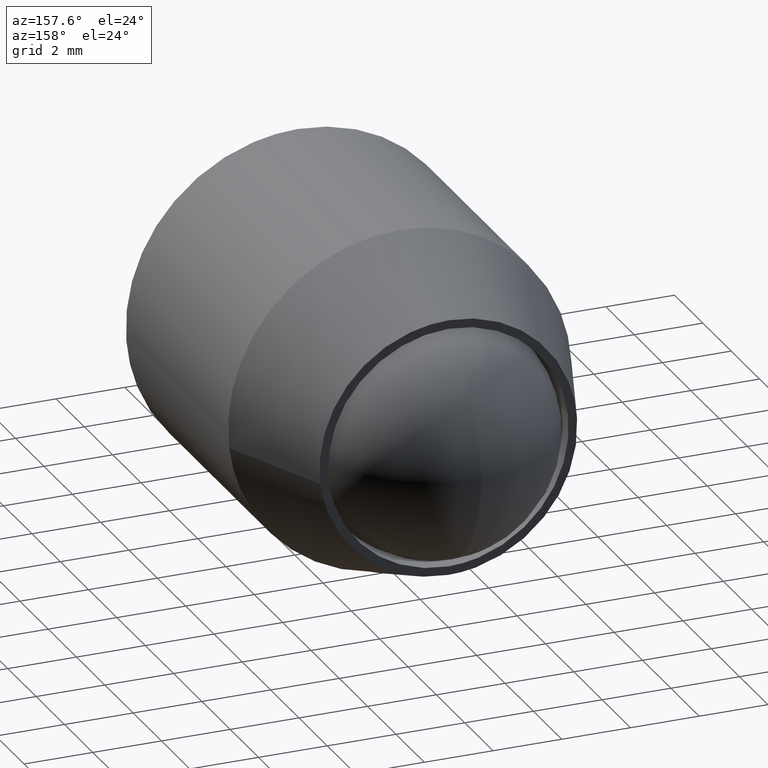
[diagram: clean part render]
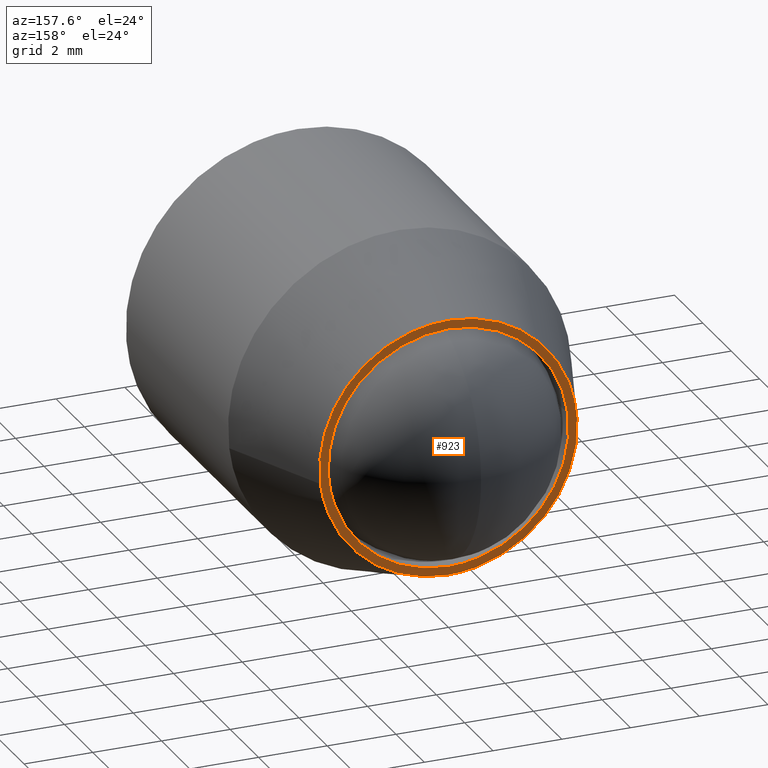
[diagram: same view with one face highlighted and labeled with its STEP entity id]
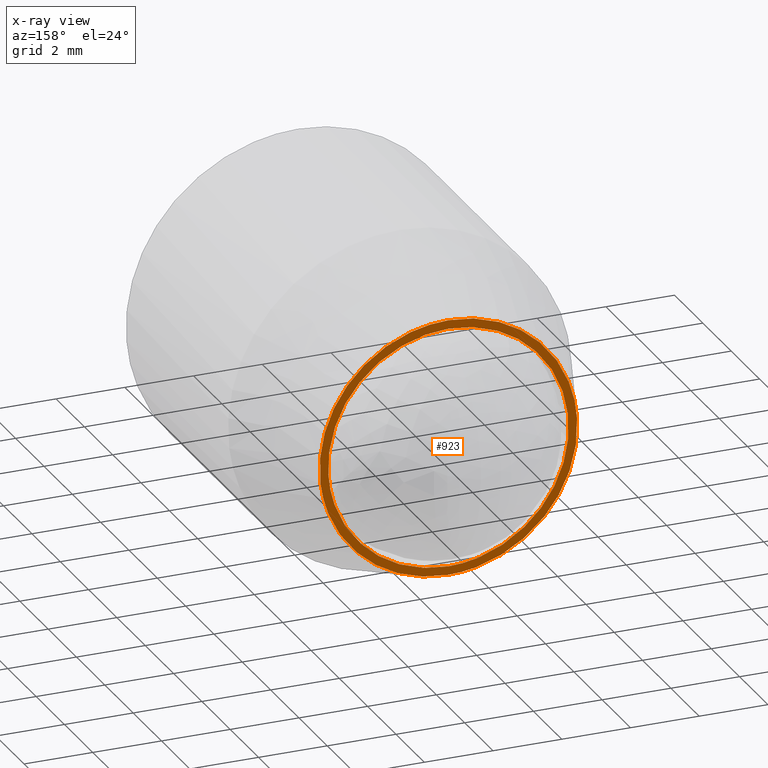
[diagram: x-ray of the same camera — body ghosted, the highlighted face saturated]
A machine part, auxiliary view. The second image highlights one B-rep face of the part: STEP entity #923.
The next image is the same camera in x-ray: the body ghosted, the highlighted face saturated — about 0% of this face is hidden behind the body in this view.
In plain terms, the highlighted face is a freeform B-spline surface patch.
Its self-contained STEP definition (entity closure, byte-faithful):
#100=CARTESIAN_POINT('',(3.493472059435628,-1.110223E-016,-0.213665556240952));
#101=VERTEX_POINT('',#100);
#107=CARTESIAN_POINT('',(0.0,0.0,-3.500000000000000));
#108=VERTEX_POINT('',#107);
#109=CARTESIAN_POINT('',(0.0,0.0,-3.500000000000000));
#110=CARTESIAN_POINT('',(3.292475324678975,0.0,-3.500000000000000));
#111=CARTESIAN_POINT('',(3.493472059435628,-1.110223E-016,-0.213665556240953));
#119=(BOUNDED_CURVE()B_SPLINE_CURVE(2,(#109,#110,#111),.UNSPECIFIED.,.F.,.U.)B_SPLINE_CURVE_WITH_KNOTS((3,3),(0.500000000000000,0.739333176211185),.UNSPECIFIED.)CURVE()GEOMETRIC_REPRESENTATION_ITEM()RATIONAL_B_SPLINE_CURVE((1.0,0.719603742602635,0.976072500250393))REPRESENTATION_ITEM(''));
#120=EDGE_CURVE('',#108,#101,#119,.T.);
#122=CARTESIAN_POINT('',(-3.475533782414077,-1.135771E-016,0.413116118403281));
#123=VERTEX_POINT('',#122);
#124=CARTESIAN_POINT('',(-3.475533782414076,-1.135771E-016,0.413116118403281));
#125=CARTESIAN_POINT('',(-3.500000000000000,0.0,0.207282547761025));
#126=CARTESIAN_POINT('',(-3.500000000000000,0.0,0.0));
#127=CARTESIAN_POINT('',(-3.500000000000000,0.0,-3.500000000000000));
#128=CARTESIAN_POINT('',(0.0,0.0,-3.500000000000000));
#136=(BOUNDED_CURVE()B_SPLINE_CURVE(2,(#124,#125,#126,#127,#128),.UNSPECIFIED.,.F.,.U.)B_SPLINE_CURVE_WITH_KNOTS((3,2,3),(0.229562653574740,0.250000000000000,0.500000000000000),.UNSPECIFIED.)CURVE()GEOMETRIC_REPRESENTATION_ITEM()RATIONAL_B_SPLINE_CURVE((0.956027107111385,0.976056159286000,1.0,0.707106781186547,1.0))REPRESENTATION_ITEM(''));
#137=EDGE_CURVE('',#123,#108,#136,.T.);
#181=CARTESIAN_POINT('',(0.0,0.0,3.500000000000000));
#182=VERTEX_POINT('',#181);
#183=CARTESIAN_POINT('',(0.0,0.0,3.500000000000000));
#184=CARTESIAN_POINT('',(-3.108614176115741,0.0,3.499999999999999));
#185=CARTESIAN_POINT('',(-3.475533782414076,-1.135771E-016,0.413116118403281));
#193=(BOUNDED_CURVE()B_SPLINE_CURVE(2,(#183,#184,#185),.UNSPECIFIED.,.F.,.U.)B_SPLINE_CURVE_WITH_KNOTS((3,3),(0.0,0.229562653574740),.UNSPECIFIED.)CURVE()GEOMETRIC_REPRESENTATION_ITEM()RATIONAL_B_SPLINE_CURVE((1.0,0.731050621900548,0.956027107111385))REPRESENTATION_ITEM(''));
#194=EDGE_CURVE('',#182,#123,#193,.T.);
#196=CARTESIAN_POINT('',(3.493472059435628,-1.110223E-016,-0.213665556240953));
#197=CARTESIAN_POINT('',(3.500000000000000,0.0,-0.106932499406306));
#198=CARTESIAN_POINT('',(3.500000000000000,0.0,0.0));
#199=CARTESIAN_POINT('',(3.500000000000000,0.0,3.500000000000000));
#200=CARTESIAN_POINT('',(0.0,0.0,3.500000000000000));
#208=(BOUNDED_CURVE()B_SPLINE_CURVE(2,(#196,#197,#198,#199,#200),.UNSPECIFIED.,.F.,.U.)B_SPLINE_CURVE_WITH_KNOTS((3,2,3),(0.739333176211185,0.750000000000000,1.0),.UNSPECIFIED.)CURVE()GEOMETRIC_REPRESENTATION_ITEM()RATIONAL_B_SPLINE_CURVE((0.976072500250393,0.987503038583913,1.0,0.707106781186547,1.0))REPRESENTATION_ITEM(''));
#209=EDGE_CURVE('',#101,#182,#208,.T.);
#484=CARTESIAN_POINT('',(3.723785501493592,0.000000950687347,-0.442627319198808));
#485=VERTEX_POINT('',#484);
#491=CARTESIAN_POINT('',(0.0,0.0,3.749999999999999));
#492=VERTEX_POINT('',#491);
#493=CARTESIAN_POINT('',(3.723785501493592,0.000000950687347,-0.442627319198808));
#494=CARTESIAN_POINT('',(3.749999665433810,0.000000925683677,-0.222089893574421));
#495=CARTESIAN_POINT('',(3.749999675608583,0.000000897531931,0.000000038558746));
#496=CARTESIAN_POINT('',(3.749999847410168,0.000000422188258,3.750000018137571));
#497=CARTESIAN_POINT('',(0.0,0.0,3.749999999999999));
#505=(BOUNDED_CURVE()B_SPLINE_CURVE(2,(#493,#494,#495,#496,#497),.UNSPECIFIED.,.F.,.U.)B_SPLINE_CURVE_WITH_KNOTS((3,2,3),(0.229562519804582,0.250000000000000,0.500000000000000),.UNSPECIFIED.)CURVE()GEOMETRIC_REPRESENTATION_ITEM()RATIONAL_B_SPLINE_CURVE((0.956026844916118,0.976056002564511,1.0,0.707106781186547,1.0))REPRESENTATION_ITEM(''));
#506=EDGE_CURVE('',#485,#492,#505,.T.);
#508=CARTESIAN_POINT('',(-3.743004912551026,0.000001996952542,0.228929625386434));
#509=VERTEX_POINT('',#508);
#510=CARTESIAN_POINT('',(0.0,0.0,3.749999999999999));
#511=CARTESIAN_POINT('',(-3.527649610390469,0.000000998476271,3.749999977814210));
#512=CARTESIAN_POINT('',(-3.743004912551026,0.000001996952542,0.228929625386434));
#520=(BOUNDED_CURVE()B_SPLINE_CURVE(2,(#510,#511,#512),.UNSPECIFIED.,.F.,.U.)B_SPLINE_CURVE_WITH_KNOTS((3,3),(0.500000000000000,0.739333070734599),.UNSPECIFIED.)CURVE()GEOMETRIC_REPRESENTATION_ITEM()RATIONAL_B_SPLINE_CURVE((1.0,0.719603866176142,0.976072274193673))REPRESENTATION_ITEM(''));
#521=EDGE_CURVE('',#492,#509,#520,.T.);
#554=CARTESIAN_POINT('',(0.0,0.0,-3.750000000000001));
#555=VERTEX_POINT('',#554);
#556=CARTESIAN_POINT('',(-3.743004912551026,0.000001996952542,0.228929625386434));
#557=CARTESIAN_POINT('',(-3.749999284949101,0.000001968255444,0.114571638587464));
#558=CARTESIAN_POINT('',(-3.749999296031640,0.000001937749549,-0.000000043056107));
#559=CARTESIAN_POINT('',(-3.749999658769798,0.000000939273278,-3.750000020870319));
#560=CARTESIAN_POINT('',(0.0,0.0,-3.750000000000001));
#568=(BOUNDED_CURVE()B_SPLINE_CURVE(2,(#556,#557,#558,#559,#560),.UNSPECIFIED.,.F.,.U.)B_SPLINE_CURVE_WITH_KNOTS((3,2,3),(0.739333070734599,0.750000000000000,1.0),.UNSPECIFIED.)CURVE()GEOMETRIC_REPRESENTATION_ITEM()RATIONAL_B_SPLINE_CURVE((0.976072274193673,0.987502915010406,1.0,0.707106781186547,1.0))REPRESENTATION_ITEM(''));
#569=EDGE_CURVE('',#509,#555,#568,.T.);
#571=CARTESIAN_POINT('',(0.0,0.0,-3.750000000000001));
#572=CARTESIAN_POINT('',(3.330655219183550,0.000000475343673,-3.749999979578827));
#573=CARTESIAN_POINT('',(3.723785501493592,0.000000950687347,-0.442627319198808));
#581=(BOUNDED_CURVE()B_SPLINE_CURVE(2,(#571,#572,#573),.UNSPECIFIED.,.F.,.U.)B_SPLINE_CURVE_WITH_KNOTS((3,3),(0.0,0.229562519804582),.UNSPECIFIED.)CURVE()GEOMETRIC_REPRESENTATION_ITEM()RATIONAL_B_SPLINE_CURVE((1.0,0.731050778622036,0.956026844916118))REPRESENTATION_ITEM(''));
#582=EDGE_CURVE('',#555,#485,#581,.T.);
#906=CARTESIAN_POINT('',(-4.124533053359756,0.0,4.124624985463544));
#907=CARTESIAN_POINT('',(-4.124533053359756,0.0,-4.124625186629222));
#908=CARTESIAN_POINT('',(4.124556187412511,0.0,4.124624985463544));
#909=CARTESIAN_POINT('',(4.124556187412511,0.0,-4.124625186629222));
#910=B_SPLINE_SURFACE_WITH_KNOTS('',1,1,((#906,#908),(#907,#909)),.UNSPECIFIED.,.F.,.F.,.U.,(2,2),(2,2),(0.0,8.249250172092765),(0.0,8.249089240772268),.UNSPECIFIED.);
#911=ORIENTED_EDGE('',*,*,#569,.F.);
#912=ORIENTED_EDGE('',*,*,#521,.F.);
#913=ORIENTED_EDGE('',*,*,#506,.F.);
#914=ORIENTED_EDGE('',*,*,#582,.F.);
#915=EDGE_LOOP('',(#911,#912,#913,#914));
#916=FACE_OUTER_BOUND('',#915,.T.);
#917=ORIENTED_EDGE('',*,*,#120,.T.);
#918=ORIENTED_EDGE('',*,*,#209,.T.);
#919=ORIENTED_EDGE('',*,*,#194,.T.);
#920=ORIENTED_EDGE('',*,*,#137,.T.);
#921=EDGE_LOOP('',(#917,#918,#919,#920));
#922=FACE_BOUND('',#921,.T.);
#923=ADVANCED_FACE('',(#916,#922),#910,.F.);